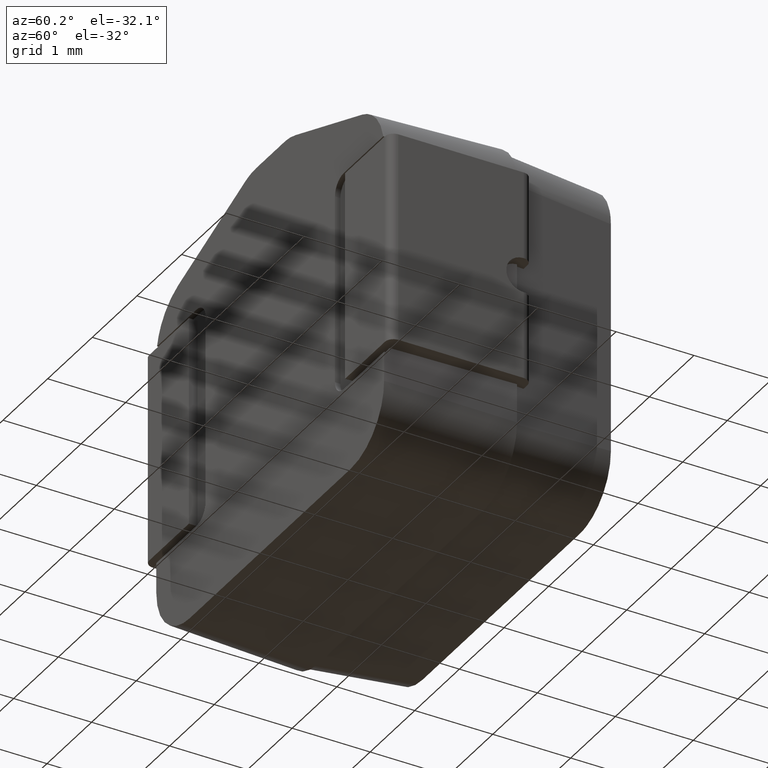
[diagram: clean part render]
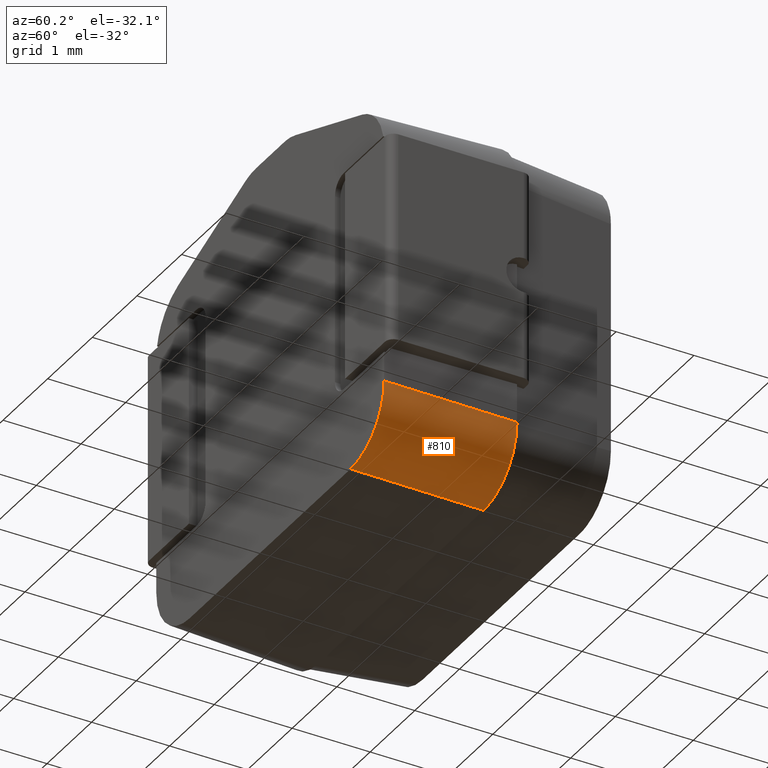
[diagram: same view with one face highlighted and labeled with its STEP entity id]
A machine part, auxiliary view. The second image highlights one B-rep face of the part: STEP entity #810.
In plain terms, the highlighted cylindrical surface (partial cylindrical patch) has radius 0.75 mm, axis along (-0.0286, -0.9992, 0.0286).
Its self-contained STEP definition (entity closure, byte-faithful):
#266 =( BOUNDED_CURVE ( )  B_SPLINE_CURVE ( 3, ( #2832, #1449, #4150, #1416 ),
 .UNSPECIFIED., .F., .T. ) 
 B_SPLINE_CURVE_WITH_KNOTS ( ( 4, 4 ),
 ( 2.356604027881341601, 3.926581279298245075 ),
 .UNSPECIFIED. ) 
 CURVE ( )  GEOMETRIC_REPRESENTATION_ITEM ( )  RATIONAL_B_SPLINE_CURVE ( ( 1.000000000000000000, 0.8049308725047492619, 0.8049308725047492619, 1.000000000000000000 ) ) 
 REPRESENTATION_ITEM ( '' )  );
#352 = CARTESIAN_POINT ( 'NONE',  ( 1.850307216153578294, 1.677999999999999936, -2.600000000000000533 ) ) ;
#466 = CARTESIAN_POINT ( 'NONE',  ( 1.802264030107104009, 0.0000000000000000000, -2.551956813953526026 ) ) ;
#745 = DIRECTION ( 'NONE',  ( -0.02860777780847556170, -0.9991812598811699031, 0.02860777780847559987 ) ) ;
#770 = CARTESIAN_POINT ( 'NONE',  ( 2.600613552286132002, 1.699429485029063880, -1.850920768439714426 ) ) ;
#810 = ADVANCED_FACE ( 'NONE', ( #1572 ), #2241, .T. ) ;
#899 = CARTESIAN_POINT ( 'NONE',  ( 2.551956813953524250, 0.0000000000000000000, -2.241498359505317062 ) ) ;
#1026 =( BOUNDED_CURVE ( )  B_SPLINE_CURVE ( 3, ( #5401, #2667, #899, #2706 ),
 .UNSPECIFIED., .F., .F. ) 
 B_SPLINE_CURVE_WITH_KNOTS ( ( 4, 4 ),
 ( 2.356604027881341601, 3.926581279298244631 ),
 .UNSPECIFIED. ) 
 CURVE ( )  GEOMETRIC_REPRESENTATION_ITEM ( )  RATIONAL_B_SPLINE_CURVE ( ( 1.000000000000000000, 0.8049308725047494839, 0.8049308725047494839, 1.000000000000000000 ) ) 
 REPRESENTATION_ITEM ( '' )  );
#1416 = CARTESIAN_POINT ( 'NONE',  ( 1.850307216153578294, 1.677999999999999936, -2.600000000000000533 ) ) ;
#1429 = AXIS2_PLACEMENT_3D ( 'NONE', #4322, #745, #3927 ) ;
#1449 = CARTESIAN_POINT ( 'NONE',  ( 2.599999999999998757, 1.677999999999999936, -2.289541545551791568 ) ) ;
#1572 = FACE_OUTER_BOUND ( 'NONE', #1776, .T. ) ;
#1650 = DIRECTION ( 'NONE',  ( -0.02860777780847555476, -0.9991812598811697921, 0.02860777780847559640 ) ) ;
#1776 = EDGE_LOOP ( 'NONE', ( #4475, #4508, #5817, #3677 ) ) ;
#1873 = CARTESIAN_POINT ( 'NONE',  ( 2.599999999999999201, 1.677999999999999936, -1.850307216153581402 ) ) ;
#2241 = CYLINDRICAL_SURFACE ( 'NONE', #1429, 0.7500000000000003331 ) ;
#2577 = VERTEX_POINT ( 'NONE', #1873 ) ;
#2607 = EDGE_CURVE ( 'NONE', #5270, #2577, #5448, .T. ) ;
#2634 = CARTESIAN_POINT ( 'NONE',  ( 2.551956813953524250, 0.0000000000000000000, -1.802264030107106674 ) ) ;
#2667 = CARTESIAN_POINT ( 'NONE',  ( 2.241498359505313953, 0.0000000000000000000, -2.551956813953526471 ) ) ;
#2706 = CARTESIAN_POINT ( 'NONE',  ( 2.551956813953524250, 0.0000000000000000000, -1.802264030107106674 ) ) ;
#2832 = CARTESIAN_POINT ( 'NONE',  ( 2.599999999999999201, 1.677999999999999936, -1.850307216153581402 ) ) ;
#2907 = VERTEX_POINT ( 'NONE', #466 ) ;
#2983 = DIRECTION ( 'NONE',  ( 0.02860777780847555823, 0.9991812598811697921, -0.02860777780847559640 ) ) ;
#3099 = VECTOR ( 'NONE', #1650, 1000.000000000000000 ) ;
#3276 = VECTOR ( 'NONE', #2983, 1000.000000000000000 ) ;
#3542 = CARTESIAN_POINT ( 'NONE',  ( 1.846665062693789272, 1.550790836569083453, -2.596357846540211067 ) ) ;
#3677 = ORIENTED_EDGE ( 'NONE', *, *, #4389, .F. ) ;
#3927 = DIRECTION ( 'NONE',  ( 0.0000000000000000000, -0.02861949137229496606, -0.9995903784618932475 ) ) ;
#4150 = CARTESIAN_POINT ( 'NONE',  ( 2.289541545551788904, 1.677999999999999936, -2.600000000000001421 ) ) ;
#4194 = EDGE_CURVE ( 'NONE', #2907, #5270, #1026, .T. ) ;
#4322 = CARTESIAN_POINT ( 'NONE',  ( 1.846665062693788828, 1.572255455098304555, -1.846665062693790604 ) ) ;
#4389 = EDGE_CURVE ( 'NONE', #4422, #2907, #5644, .T. ) ;
#4422 = VERTEX_POINT ( 'NONE', #352 ) ;
#4475 = ORIENTED_EDGE ( 'NONE', *, *, #5450, .F. ) ;
#4508 = ORIENTED_EDGE ( 'NONE', *, *, #2607, .F. ) ;
#5270 = VERTEX_POINT ( 'NONE', #2634 ) ;
#5401 = CARTESIAN_POINT ( 'NONE',  ( 1.802264030107104009, 0.0000000000000000000, -2.551956813953526026 ) ) ;
#5448 = LINE ( 'NONE', #770, #3276 ) ;
#5450 = EDGE_CURVE ( 'NONE', #2577, #4422, #266, .T. ) ;
#5644 = LINE ( 'NONE', #3542, #3099 ) ;
#5817 = ORIENTED_EDGE ( 'NONE', *, *, #4194, .F. ) ;